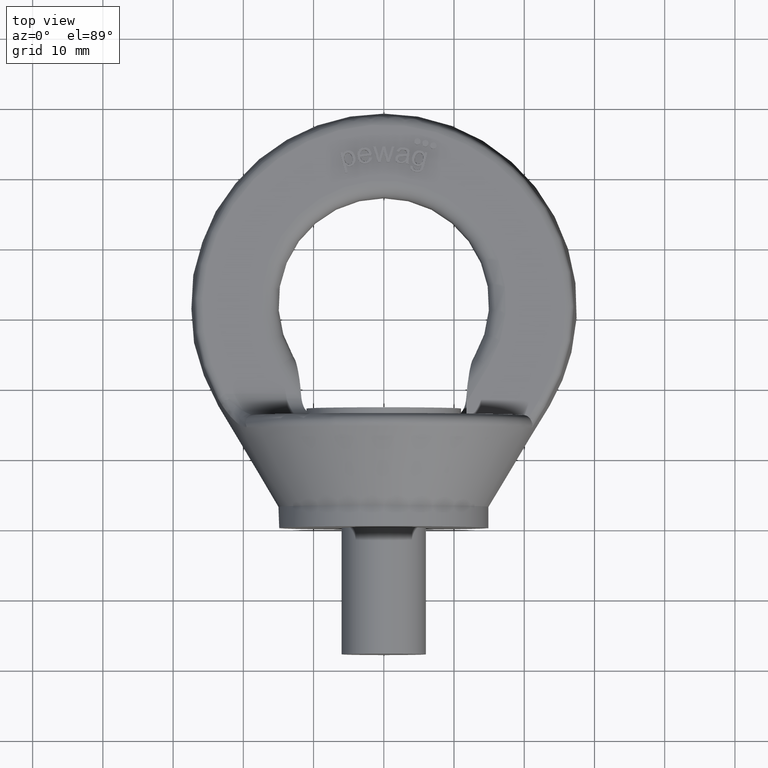
[diagram: clean part render]
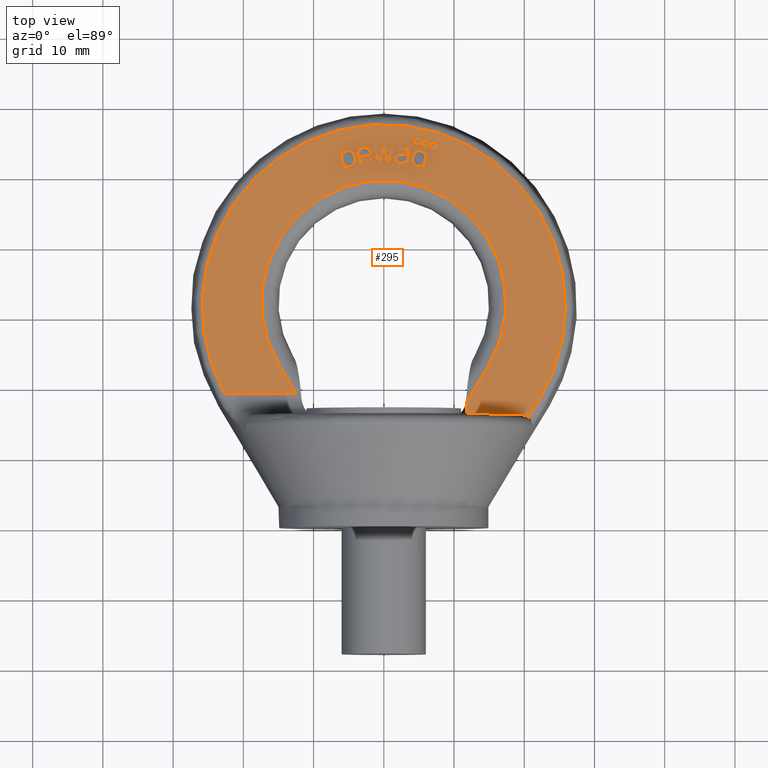
[diagram: same view with one face highlighted and labeled with its STEP entity id]
A machine part, top view. The second image highlights one B-rep face of the part: STEP entity #295.
In plain terms, the highlighted planar face has unit normal (0, -0, -1).
Its self-contained STEP definition (entity closure, byte-faithful):
#295=ADVANCED_FACE('',(#619,#620,#621,#622,#623,#624,#625,#626,#627),#477,
 .F.);
#477=PLANE('',#3199);
#570=CIRCLE('',#3194,0.45);
#571=CIRCLE('',#3195,0.45);
#572=CIRCLE('',#3196,0.45);
#573=CIRCLE('',#3197,17.4);
#574=CIRCLE('',#3198,25.8582675367086);
#619=FACE_BOUND('',#681,.T.);
#620=FACE_BOUND('',#682,.T.);
#621=FACE_BOUND('',#683,.T.);
#622=FACE_BOUND('',#684,.T.);
#623=FACE_BOUND('',#685,.T.);
#624=FACE_BOUND('',#686,.T.);
#625=FACE_BOUND('',#687,.T.);
#626=FACE_BOUND('',#688,.T.);
#627=FACE_BOUND('',#689,.T.);
#681=EDGE_LOOP('',(#1345,#1346,#1347,#1348,#1349,#1350,#1351));
#682=EDGE_LOOP('',(#1352,#1353,#1354,#1355,#1356,#1357,#1358,#1359,#1360,
#1361,#1362,#1363,#1364,#1365,#1366));
#683=EDGE_LOOP('',(#1367,#1368,#1369,#1370,#1371));
#684=EDGE_LOOP('',(#1372));
#685=EDGE_LOOP('',(#1373));
#686=EDGE_LOOP('',(#1374));
#687=EDGE_LOOP('',(#1375,#1376,#1377,#1378,#1379,#1380,#1381,#1382,#1383));
#688=EDGE_LOOP('',(#1384,#1385,#1386,#1387,#1388,#1389));
#689=EDGE_LOOP('',(#1390,#1391,#1392,#1393,#1394,#1395,#1396,#1397,#1398));
#901=LINE('',#3985,#1095);
#902=LINE('',#4017,#1096);
#903=LINE('',#4019,#1097);
#904=LINE('',#4020,#1098);
#905=LINE('',#4023,#1099);
#906=LINE('',#4025,#1100);
#907=LINE('',#4027,#1101);
#908=LINE('',#4041,#1102);
#909=LINE('',#4043,#1103);
#910=LINE('',#4059,#1104);
#911=LINE('',#4061,#1105);
#912=LINE('',#4063,#1106);
#913=LINE('',#4065,#1107);
#914=LINE('',#4067,#1108);
#915=LINE('',#4083,#1109);
#916=LINE('',#4106,#1110);
#917=LINE('',#4116,#1111);
#918=LINE('',#4118,#1112);
#919=LINE('',#4120,#1113);
#920=LINE('',#4143,#1114);
#921=LINE('',#4145,#1115);
#922=LINE('',#4146,#1116);
#923=LINE('',#4149,#1117);
#924=LINE('',#4151,#1118);
#925=LINE('',#4153,#1119);
#926=LINE('',#4155,#1120);
#927=LINE('',#4179,#1121);
#928=LINE('',#4224,#1122);
#1095=VECTOR('',#3369,1.);
#1096=VECTOR('',#3370,1.);
#1097=VECTOR('',#3371,1.);
#1098=VECTOR('',#3372,1.);
#1099=VECTOR('',#3373,1.);
#1100=VECTOR('',#3374,1.);
#1101=VECTOR('',#3375,1.);
#1102=VECTOR('',#3376,1.);
#1103=VECTOR('',#3377,1.);
#1104=VECTOR('',#3378,1.);
#1105=VECTOR('',#3379,1.);
#1106=VECTOR('',#3380,1.);
#1107=VECTOR('',#3381,1.);
#1108=VECTOR('',#3382,1.);
#1109=VECTOR('',#3383,1.);
#1110=VECTOR('',#3384,1.);
#1111=VECTOR('',#3393,1.);
#1112=VECTOR('',#3394,1.);
#1113=VECTOR('',#3395,1.);
#1114=VECTOR('',#3398,1.);
#1115=VECTOR('',#3399,1.);
#1116=VECTOR('',#3400,1.);
#1117=VECTOR('',#3401,1.);
#1118=VECTOR('',#3402,1.);
#1119=VECTOR('',#3403,1.);
#1120=VECTOR('',#3404,1.);
#1121=VECTOR('',#3405,1.);
#1122=VECTOR('',#3406,1.);
#1345=ORIENTED_EDGE('',*,*,#2512,.T.);
#1346=ORIENTED_EDGE('',*,*,#2513,.T.);
#1347=ORIENTED_EDGE('',*,*,#2514,.T.);
#1348=ORIENTED_EDGE('',*,*,#2515,.T.);
#1349=ORIENTED_EDGE('',*,*,#2516,.T.);
#1350=ORIENTED_EDGE('',*,*,#2517,.T.);
#1351=ORIENTED_EDGE('',*,*,#2518,.T.);
#1352=ORIENTED_EDGE('',*,*,#2519,.T.);
#1353=ORIENTED_EDGE('',*,*,#2520,.T.);
#1354=ORIENTED_EDGE('',*,*,#2521,.T.);
#1355=ORIENTED_EDGE('',*,*,#2522,.T.);
#1356=ORIENTED_EDGE('',*,*,#2523,.T.);
#1357=ORIENTED_EDGE('',*,*,#2524,.T.);
#1358=ORIENTED_EDGE('',*,*,#2525,.T.);
#1359=ORIENTED_EDGE('',*,*,#2526,.T.);
#1360=ORIENTED_EDGE('',*,*,#2527,.T.);
#1361=ORIENTED_EDGE('',*,*,#2528,.T.);
#1362=ORIENTED_EDGE('',*,*,#2529,.T.);
#1363=ORIENTED_EDGE('',*,*,#2530,.T.);
#1364=ORIENTED_EDGE('',*,*,#2531,.T.);
#1365=ORIENTED_EDGE('',*,*,#2532,.T.);
#1366=ORIENTED_EDGE('',*,*,#2533,.T.);
#1367=ORIENTED_EDGE('',*,*,#2534,.T.);
#1368=ORIENTED_EDGE('',*,*,#2535,.T.);
#1369=ORIENTED_EDGE('',*,*,#2536,.T.);
#1370=ORIENTED_EDGE('',*,*,#2537,.T.);
#1371=ORIENTED_EDGE('',*,*,#2538,.T.);
#1372=ORIENTED_EDGE('',*,*,#2539,.F.);
#1373=ORIENTED_EDGE('',*,*,#2540,.F.);
#1374=ORIENTED_EDGE('',*,*,#2541,.F.);
#1375=ORIENTED_EDGE('',*,*,#2542,.T.);
#1376=ORIENTED_EDGE('',*,*,#2543,.T.);
#1377=ORIENTED_EDGE('',*,*,#2544,.T.);
#1378=ORIENTED_EDGE('',*,*,#2545,.F.);
#1379=ORIENTED_EDGE('',*,*,#2546,.T.);
#1380=ORIENTED_EDGE('',*,*,#2547,.T.);
#1381=ORIENTED_EDGE('',*,*,#2548,.T.);
#1382=ORIENTED_EDGE('',*,*,#2549,.T.);
#1383=ORIENTED_EDGE('',*,*,#2550,.T.);
#1384=ORIENTED_EDGE('',*,*,#2551,.T.);
#1385=ORIENTED_EDGE('',*,*,#2552,.T.);
#1386=ORIENTED_EDGE('',*,*,#2553,.T.);
#1387=ORIENTED_EDGE('',*,*,#2554,.T.);
#1388=ORIENTED_EDGE('',*,*,#2555,.T.);
#1389=ORIENTED_EDGE('',*,*,#2556,.T.);
#1390=ORIENTED_EDGE('',*,*,#2557,.T.);
#1391=ORIENTED_EDGE('',*,*,#2558,.T.);
#1392=ORIENTED_EDGE('',*,*,#2559,.T.);
#1393=ORIENTED_EDGE('',*,*,#2560,.T.);
#1394=ORIENTED_EDGE('',*,*,#2561,.T.);
#1395=ORIENTED_EDGE('',*,*,#2562,.T.);
#1396=ORIENTED_EDGE('',*,*,#2563,.T.);
#1397=ORIENTED_EDGE('',*,*,#2564,.T.);
#1398=ORIENTED_EDGE('',*,*,#2565,.T.);
#2219=VERTEX_POINT('',#3978);
#2220=VERTEX_POINT('',#3979);
#2221=VERTEX_POINT('',#3984);
#2222=VERTEX_POINT('',#3986);
#2223=VERTEX_POINT('',#3999);
#2224=VERTEX_POINT('',#4016);
#2225=VERTEX_POINT('',#4018);
#2226=VERTEX_POINT('',#4021);
#2227=VERTEX_POINT('',#4022);
#2228=VERTEX_POINT('',#4024);
#2229=VERTEX_POINT('',#4026);
#2230=VERTEX_POINT('',#4028);
#2231=VERTEX_POINT('',#4035);
#2232=VERTEX_POINT('',#4040);
#2233=VERTEX_POINT('',#4042);
#2234=VERTEX_POINT('',#4044);
#2235=VERTEX_POINT('',#4051);
#2236=VERTEX_POINT('',#4058);
#2237=VERTEX_POINT('',#4060);
#2238=VERTEX_POINT('',#4062);
#2239=VERTEX_POINT('',#4064);
#2240=VERTEX_POINT('',#4066);
#2241=VERTEX_POINT('',#4076);
#2242=VERTEX_POINT('',#4077);
#2243=VERTEX_POINT('',#4082);
#2244=VERTEX_POINT('',#4084);
#2245=VERTEX_POINT('',#4105);
#2246=VERTEX_POINT('',#4108);
#2247=VERTEX_POINT('',#4110);
#2248=VERTEX_POINT('',#4112);
#2249=VERTEX_POINT('',#4114);
#2250=VERTEX_POINT('',#4115);
#2251=VERTEX_POINT('',#4117);
#2252=VERTEX_POINT('',#4119);
#2253=VERTEX_POINT('',#4121);
#2254=VERTEX_POINT('',#4132);
#2255=VERTEX_POINT('',#4140);
#2256=VERTEX_POINT('',#4142);
#2257=VERTEX_POINT('',#4144);
#2258=VERTEX_POINT('',#4147);
#2259=VERTEX_POINT('',#4148);
#2260=VERTEX_POINT('',#4150);
#2261=VERTEX_POINT('',#4152);
#2262=VERTEX_POINT('',#4154);
#2263=VERTEX_POINT('',#4156);
#2264=VERTEX_POINT('',#4180);
#2265=VERTEX_POINT('',#4181);
#2266=VERTEX_POINT('',#4186);
#2267=VERTEX_POINT('',#4203);
#2268=VERTEX_POINT('',#4210);
#2269=VERTEX_POINT('',#4223);
#2270=VERTEX_POINT('',#4225);
#2271=VERTEX_POINT('',#4230);
#2272=VERTEX_POINT('',#4243);
#2512=EDGE_CURVE('',#2219,#2220,#2949,.T.);
#2513=EDGE_CURVE('',#2220,#2221,#2950,.T.);
#2514=EDGE_CURVE('',#2221,#2222,#901,.T.);
#2515=EDGE_CURVE('',#2222,#2223,#2951,.T.);
#2516=EDGE_CURVE('',#2223,#2224,#2952,.T.);
#2517=EDGE_CURVE('',#2224,#2225,#902,.T.);
#2518=EDGE_CURVE('',#2225,#2219,#903,.T.);
#2519=EDGE_CURVE('',#2226,#2227,#904,.T.);
#2520=EDGE_CURVE('',#2227,#2228,#905,.T.);
#2521=EDGE_CURVE('',#2228,#2229,#906,.T.);
#2522=EDGE_CURVE('',#2229,#2230,#907,.T.);
#2523=EDGE_CURVE('',#2230,#2231,#2953,.T.);
#2524=EDGE_CURVE('',#2231,#2232,#2954,.T.);
#2525=EDGE_CURVE('',#2232,#2233,#908,.T.);
#2526=EDGE_CURVE('',#2233,#2234,#909,.T.);
#2527=EDGE_CURVE('',#2234,#2235,#2955,.T.);
#2528=EDGE_CURVE('',#2235,#2236,#2956,.T.);
#2529=EDGE_CURVE('',#2236,#2237,#910,.T.);
#2530=EDGE_CURVE('',#2237,#2238,#911,.T.);
#2531=EDGE_CURVE('',#2238,#2239,#912,.T.);
#2532=EDGE_CURVE('',#2239,#2240,#913,.T.);
#2533=EDGE_CURVE('',#2240,#2226,#914,.T.);
#2534=EDGE_CURVE('',#2241,#2242,#2957,.T.);
#2535=EDGE_CURVE('',#2242,#2243,#2958,.T.);
#2536=EDGE_CURVE('',#2243,#2244,#915,.T.);
#2537=EDGE_CURVE('',#2244,#2245,#2959,.T.);
#2538=EDGE_CURVE('',#2245,#2241,#916,.T.);
#2539=EDGE_CURVE('',#2246,#2246,#570,.T.);
#2540=EDGE_CURVE('',#2247,#2247,#571,.T.);
#2541=EDGE_CURVE('',#2248,#2248,#572,.T.);
#2542=EDGE_CURVE('',#2249,#2250,#573,.T.);
#2543=EDGE_CURVE('',#2250,#2251,#917,.T.);
#2544=EDGE_CURVE('',#2251,#2252,#918,.T.);
#2545=EDGE_CURVE('',#2253,#2252,#919,.T.);
#2546=EDGE_CURVE('',#2253,#2254,#2960,.T.);
#2547=EDGE_CURVE('',#2254,#2255,#2961,.T.);
#2548=EDGE_CURVE('',#2255,#2256,#574,.T.);
#2549=EDGE_CURVE('',#2256,#2257,#920,.T.);
#2550=EDGE_CURVE('',#2257,#2249,#921,.T.);
#2551=EDGE_CURVE('',#2258,#2259,#922,.T.);
#2552=EDGE_CURVE('',#2259,#2260,#923,.T.);
#2553=EDGE_CURVE('',#2260,#2261,#924,.T.);
#2554=EDGE_CURVE('',#2261,#2262,#925,.T.);
#2555=EDGE_CURVE('',#2262,#2263,#926,.T.);
#2556=EDGE_CURVE('',#2263,#2258,#2962,.T.);
#2557=EDGE_CURVE('',#2264,#2265,#927,.T.);
#2558=EDGE_CURVE('',#2265,#2266,#2963,.T.);
#2559=EDGE_CURVE('',#2266,#2267,#2964,.T.);
#2560=EDGE_CURVE('',#2267,#2268,#2965,.T.);
#2561=EDGE_CURVE('',#2268,#2269,#2966,.T.);
#2562=EDGE_CURVE('',#2269,#2270,#928,.T.);
#2563=EDGE_CURVE('',#2270,#2271,#2967,.T.);
#2564=EDGE_CURVE('',#2271,#2272,#2968,.T.);
#2565=EDGE_CURVE('',#2272,#2264,#2969,.T.);
#2949=B_SPLINE_CURVE_WITH_KNOTS('',3,(#3966,#3967,#3968,#3969,#3970,#3971,
#3972,#3973,#3974,#3975,#3976,#3977),.UNSPECIFIED.,.F.,.F.,(4,2,2,2,2,4),
(0.,0.305645754892086,0.470829306249209,0.636012857606332,0.802206343843955,
1.),.UNSPECIFIED.);
#2950=B_SPLINE_CURVE_WITH_KNOTS('',3,(#3980,#3981,#3982,#3983),
 .UNSPECIFIED.,.F.,.F.,(4,4),(0.,1.),.UNSPECIFIED.);
#2951=B_SPLINE_CURVE_WITH_KNOTS('',3,(#3987,#3988,#3989,#3990,#3991,#3992,
#3993,#3994,#3995,#3996,#3997,#3998),.UNSPECIFIED.,.F.,.F.,(4,2,2,2,2,4),
(0.,0.16330465130929,0.382303784248535,0.619375661168201,0.856447538087869,
1.),.UNSPECIFIED.);
#2952=B_SPLINE_CURVE_WITH_KNOTS('',3,(#4000,#4001,#4002,#4003,#4004,#4005,
#4006,#4007,#4008,#4009,#4010,#4011,#4012,#4013,#4014,#4015),
 .UNSPECIFIED.,.F.,.F.,(4,2,2,2,2,2,2,4),(0.,0.139503666745452,0.312880428291713,
0.486257189837976,0.605370995480445,0.723854105689066,0.842337215897688,
1.),.UNSPECIFIED.);
#2953=B_SPLINE_CURVE_WITH_KNOTS('',3,(#4029,#4030,#4031,#4032,#4033,#4034),
 .UNSPECIFIED.,.F.,.F.,(4,2,4),(0.,0.728909607654959,1.),.UNSPECIFIED.);
#2954=B_SPLINE_CURVE_WITH_KNOTS('',3,(#4036,#4037,#4038,#4039),
 .UNSPECIFIED.,.F.,.F.,(4,4),(0.,1.),.UNSPECIFIED.);
#2955=B_SPLINE_CURVE_WITH_KNOTS('',3,(#4045,#4046,#4047,#4048,#4049,#4050),
 .UNSPECIFIED.,.F.,.F.,(4,2,4),(0.,0.752082276025114,1.),.UNSPECIFIED.);
#2956=B_SPLINE_CURVE_WITH_KNOTS('',3,(#4052,#4053,#4054,#4055,#4056,#4057),
 .UNSPECIFIED.,.F.,.F.,(4,2,4),(0.,0.250451922487267,1.),.UNSPECIFIED.);
#2957=B_SPLINE_CURVE_WITH_KNOTS('',3,(#4068,#4069,#4070,#4071,#4072,#4073,
#4074,#4075),.UNSPECIFIED.,.F.,.F.,(4,2,2,4),(0.,0.36347796861321,0.72808767591244,
1.),.UNSPECIFIED.);
#2958=B_SPLINE_CURVE_WITH_KNOTS('',3,(#4078,#4079,#4080,#4081),
 .UNSPECIFIED.,.F.,.F.,(4,4),(0.,1.),.UNSPECIFIED.);
#2959=B_SPLINE_CURVE_WITH_KNOTS('',3,(#4085,#4086,#4087,#4088,#4089,#4090,
#4091,#4092,#4093,#4094,#4095,#4096,#4097,#4098,#4099,#4100,#4101,#4102,
#4103,#4104),.UNSPECIFIED.,.F.,.F.,(4,2,2,2,2,2,2,2,2,4),(0.,0.10292120312204,
0.206156274885326,0.336063021724233,0.465707475917735,0.599570296299742,
0.733433116681749,0.86284525505617,0.992257393430589,1.),.UNSPECIFIED.);
#2960=B_SPLINE_CURVE_WITH_KNOTS('',3,(#4122,#4123,#4124,#4125,#4126,#4127,
#4128,#4129,#4130,#4131),.UNSPECIFIED.,.F.,.F.,(4,3,3,4),(0.,0.463311425713851,
0.927293740386998,1.),.UNSPECIFIED.);
#2961=B_SPLINE_CURVE_WITH_KNOTS('',3,(#4133,#4134,#4135,#4136,#4137,#4138,
#4139),.UNSPECIFIED.,.F.,.F.,(4,3,4),(0.,0.140934782640882,1.),
 .UNSPECIFIED.);
#2962=B_SPLINE_CURVE_WITH_KNOTS('',3,(#4157,#4158,#4159,#4160,#4161,#4162,
#4163,#4164,#4165,#4166,#4167,#4168,#4169,#4170,#4171,#4172,#4173,#4174,
#4175,#4176,#4177,#4178),.UNSPECIFIED.,.F.,.F.,(4,2,2,2,2,2,2,2,2,2,4),
(0.,0.0830854503763809,0.165678296755064,0.273272220956485,0.380460889370507,
0.487248686046667,0.601946689884027,0.717055250849187,0.831909514623418,
0.915821305508702,1.),.UNSPECIFIED.);
#2963=B_SPLINE_CURVE_WITH_KNOTS('',3,(#4182,#4183,#4184,#4185),
 .UNSPECIFIED.,.F.,.F.,(4,4),(0.,1.),.UNSPECIFIED.);
#2964=B_SPLINE_CURVE_WITH_KNOTS('',3,(#4187,#4188,#4189,#4190,#4191,#4192,
#4193,#4194,#4195,#4196,#4197,#4198,#4199,#4200,#4201,#4202),
 .UNSPECIFIED.,.F.,.F.,(4,2,2,2,2,2,2,4),(0.,0.121639465164562,0.243930904991188,
0.445161792748228,0.646392680505269,0.76356509616127,0.881519242448368,
1.),.UNSPECIFIED.);
#2965=B_SPLINE_CURVE_WITH_KNOTS('',3,(#4204,#4205,#4206,#4207,#4208,#4209),
 .UNSPECIFIED.,.F.,.F.,(4,2,4),(0.,0.3293446934494,1.),.UNSPECIFIED.);
#2966=B_SPLINE_CURVE_WITH_KNOTS('',3,(#4211,#4212,#4213,#4214,#4215,#4216,
#4217,#4218,#4219,#4220,#4221,#4222),.UNSPECIFIED.,.F.,.F.,(4,2,2,2,2,4),
(0.,0.0173977322142899,0.217983350684955,0.490675035316423,0.745337517658205,
1.),.UNSPECIFIED.);
#2967=B_SPLINE_CURVE_WITH_KNOTS('',3,(#4226,#4227,#4228,#4229),
 .UNSPECIFIED.,.F.,.F.,(4,4),(0.,1.),.UNSPECIFIED.);
#2968=B_SPLINE_CURVE_WITH_KNOTS('',3,(#4231,#4232,#4233,#4234,#4235,#4236,
#4237,#4238,#4239,#4240,#4241,#4242),.UNSPECIFIED.,.F.,.F.,(4,2,2,2,2,4),
(0.,0.201730292707491,0.402155128097313,0.601755169925863,0.80019954507805,
1.),.UNSPECIFIED.);
#2969=B_SPLINE_CURVE_WITH_KNOTS('',3,(#4244,#4245,#4246,#4247,#4248,#4249,
#4250,#4251,#4252,#4253),.UNSPECIFIED.,.F.,.F.,(4,2,2,2,4),(0.,0.161403604805118,
0.32305979741118,0.661780038481079,1.),.UNSPECIFIED.);
#3194=AXIS2_PLACEMENT_3D('',#4107,#3385,#3386);
#3195=AXIS2_PLACEMENT_3D('',#4109,#3387,#3388);
#3196=AXIS2_PLACEMENT_3D('',#4111,#3389,#3390);
#3197=AXIS2_PLACEMENT_3D('',#4113,#3391,#3392);
#3198=AXIS2_PLACEMENT_3D('',#4141,#3396,#3397);
#3199=AXIS2_PLACEMENT_3D('',#4254,#3407,#3408);
#3369=DIRECTION('',(0.926036898244061,-0.377432991523685,4.32376707266986E-17));
#3370=DIRECTION('',(0.240441711768687,0.970663578816958,-1.11196512095718E-16));
#3371=DIRECTION('',(0.970663578816969,-0.240441711768639,2.75443318307901E-17));
#3372=DIRECTION('',(-0.258675883018076,-0.965964175083537,1.10658161512169E-16));
#3373=DIRECTION('',(-0.999999995678886,9.29635860053068E-5,-1.06496491073657E-20));
#3374=DIRECTION('',(-0.297319028478967,0.954778191678216,-1.09376726454568E-16));
#3375=DIRECTION('',(0.999999995678886,-9.29635860091688E-5,1.06496491078081E-20));
#3376=DIRECTION('',(0.266687759387679,0.963782983348834,-1.10408290271088E-16));
#3377=DIRECTION('',(0.999999995678886,-9.29635860511763E-5,1.06496491126204E-20));
#3378=DIRECTION('',(0.999999995678886,-9.29635860255876E-5,1.0649649109689E-20));
#3379=DIRECTION('',(-0.303109223404765,-0.952955822001713,1.09167960867604E-16));
#3380=DIRECTION('',(-0.999999995678886,9.29635860032808E-5,-1.06496491071336E-20));
#3381=DIRECTION('',(-0.260553429481471,0.965459429694197,-1.10600339288263E-16));
#3382=DIRECTION('',(-0.226101851815538,0.974103666251998,-1.11590598916763E-16));
#3383=DIRECTION('',(0.99995564898741,0.0094180708305311,-1.07890792431078E-18));
#3384=DIRECTION('',(-0.991600377783164,-0.129339440157618,1.48167654950737E-17));
#3385=DIRECTION('',(0.,1.14557210677714E-16,1.));
#3386=DIRECTION('',(0.,0.999999999999997,0.));
#3387=DIRECTION('',(0.,1.14557210677714E-16,1.));
#3388=DIRECTION('',(0.,0.999999999999997,0.));
#3389=DIRECTION('',(0.,1.14557210677714E-16,1.));
#3390=DIRECTION('',(0.,0.999999999999997,0.));
#3391=DIRECTION('',(0.,-1.14557210677714E-16,-1.));
#3392=DIRECTION('',(0.,1.,-9.969675149292E-17));
#3393=DIRECTION('',(-0.51318793037975,-0.858276265611807,9.83217349793731E-17));
#3394=DIRECTION('',(0.,-1.,0.));
#3395=DIRECTION('',(-1.,0.,0.));
#3396=DIRECTION('',(0.,1.14557210677714E-16,1.));
#3397=DIRECTION('',(0.,1.,-1.00628752884209E-16));
#3398=DIRECTION('',(1.,4.38613491528481E-16,-5.02463381551158E-32));
#3399=DIRECTION('',(-0.513187930379751,0.858276265611807,-9.83217349793731E-17));
#3400=DIRECTION('',(0.240261234879321,-0.970708266686889,1.11201631413448E-16));
#3401=DIRECTION('',(-0.970708266686887,-0.240261234879326,2.75236569017586E-17));
#3402=DIRECTION('',(-0.24026123487932,0.970708266686889,-1.11201631413448E-16));
#3403=DIRECTION('',(0.970708266686893,0.240261234879303,-2.7523656901756E-17));
#3404=DIRECTION('',(0.240261234879329,-0.970708266686887,1.11201631413448E-16));
#3405=DIRECTION('',(-0.991576312927648,0.129523803375332,-1.48378856310467E-17));
#3406=DIRECTION('',(-0.965560779386236,0.260177595713091,-2.98052196457256E-17));
#3407=DIRECTION('',(0.,-1.14557210677714E-16,-1.));
#3408=DIRECTION('',(0.,1.,-1.14491749414469E-16));
#3966=CARTESIAN_POINT('',(6.20575754336817,53.3063757401385,6.));
#3967=CARTESIAN_POINT('',(6.05518161335801,52.6985004674489,6.));
#3968=CARTESIAN_POINT('',(5.90460568334785,52.0906251947592,6.));
#3969=CARTESIAN_POINT('',(5.67265232057485,51.1542290945498,6.));
#3970=CARTESIAN_POINT('',(5.5809698240465,50.9302553745607,6.));
#3971=CARTESIAN_POINT('',(5.37662564480681,50.6899122592701,6.));
#3972=CARTESIAN_POINT('',(5.2420504243621,50.6078121137664,6.));
#3973=CARTESIAN_POINT('',(4.90781318724153,50.5224743446232,6.));
#3974=CARTESIAN_POINT('',(4.7161927536727,50.5277574319655,6.));
#3975=CARTESIAN_POINT('',(4.24472578209141,50.6445438532996,6.));
#3976=CARTESIAN_POINT('',(4.05181997350079,50.7524180364342,6.));
#3977=CARTESIAN_POINT('',(3.92220745020137,50.904703685001,6.));
#3978=CARTESIAN_POINT('',(6.20575754336817,53.3063757401385,6.));
#3979=CARTESIAN_POINT('',(3.92220745020137,50.904703685001,6.));
#3980=CARTESIAN_POINT('',(3.92220745020137,50.904703685001,6.));
#3981=CARTESIAN_POINT('',(3.79259492690194,51.0569893335678,6.));
#3982=CARTESIAN_POINT('',(3.75905359406856,51.2463577334012,6.));
#3983=CARTESIAN_POINT('',(3.82064093689038,51.4722516988339,6.));
#3984=CARTESIAN_POINT('',(3.82064093689038,51.4722516988339,6.));
#3985=CARTESIAN_POINT('',(41.5829666251604,36.0811289709585,6.));
#3986=CARTESIAN_POINT('',(4.16188763482528,51.3331667851621,6.));
#3987=CARTESIAN_POINT('',(4.16188763482528,51.3331667851621,6.));
#3988=CARTESIAN_POINT('',(4.1497171360946,51.2223272473401,6.));
#3989=CARTESIAN_POINT('',(4.17127277304765,51.1339689886218,6.));
#3990=CARTESIAN_POINT('',(4.30068997402487,50.9797479153108,6.));
#3991=CARTESIAN_POINT('',(4.41576405205717,50.9160661145281,6.));
#3992=CARTESIAN_POINT('',(4.74093982506099,50.8355172805211,6.));
#3993=CARTESIAN_POINT('',(4.87867463331529,50.8361879908635,6.));
#3994=CARTESIAN_POINT('',(5.0949533406775,50.923350430372,6.));
#3995=CARTESIAN_POINT('',(5.18017431618491,51.0010722981359,6.));
#3996=CARTESIAN_POINT('',(5.27868933679549,51.1797755599088,6.));
#3997=CARTESIAN_POINT('',(5.32549224742333,51.3311489177058,6.));
#3998=CARTESIAN_POINT('',(5.38173395548938,51.5646922803139,6.));
#3999=CARTESIAN_POINT('',(5.38173395548938,51.5646922803139,6.));
#4000=CARTESIAN_POINT('',(5.38173395548938,51.5646922803139,6.));
#4001=CARTESIAN_POINT('',(5.1767937308231,51.4193753730725,6.));
#4002=CARTESIAN_POINT('',(4.9562624121782,51.3767523497323,6.));
#4003=CARTESIAN_POINT('',(4.42415660180832,51.5085595326528,6.));
#4004=CARTESIAN_POINT('',(4.22107909102038,51.6695552338382,6.));
#4005=CARTESIAN_POINT('',(4.00188275567911,52.1681999844469,6.));
#4006=CARTESIAN_POINT('',(3.98296469165895,52.439336781128,6.));
#4007=CARTESIAN_POINT('',(4.10530763479221,52.9332354401884,6.));
#4008=CARTESIAN_POINT('',(4.18839672572244,53.1095265753095,6.));
#4009=CARTESIAN_POINT('',(4.42085924575848,53.4131047639506,6.));
#4010=CARTESIAN_POINT('',(4.56082942679884,53.5185468657608,6.));
#4011=CARTESIAN_POINT('',(4.88856330001201,53.6334467307898,6.));
#4012=CARTESIAN_POINT('',(5.06542948324847,53.6394467022555,6.));
#4013=CARTESIAN_POINT('',(5.50885099189005,53.5296073831551,6.));
#4014=CARTESIAN_POINT('',(5.6923855412168,53.3774059149407,6.));
#4015=CARTESIAN_POINT('',(5.80686094408679,53.1347819534282,6.));
#4016=CARTESIAN_POINT('',(5.80686094408679,53.1347819534282,6.));
#4017=CARTESIAN_POINT('',(12.3535770690589,79.5638855254303,6.));
#4018=CARTESIAN_POINT('',(5.86996997357634,53.3895532074231,6.));
#4019=CARTESIAN_POINT('',(48.5163929045193,42.8256676819946,6.));
#4020=CARTESIAN_POINT('',(7.50132722587871,81.7196861322211,6.));
#4021=CARTESIAN_POINT('',(-0.00969874891857249,53.6715282400953,6.));
#4022=CARTESIAN_POINT('',(-0.457306471073102,52.0000425992719,6.));
#4023=CARTESIAN_POINT('',(54.9984191437302,51.994887236132,6.));
#4024=CARTESIAN_POINT('',(-0.848534425392187,52.0000789692257,6.));
#4025=CARTESIAN_POINT('',(-0.737432804766271,51.6432992334099,6.));
#4026=CARTESIAN_POINT('',(-1.52536757645237,54.1735877935451,6.));
#4027=CARTESIAN_POINT('',(54.9986211950545,54.1683331208306,6.));
#4028=CARTESIAN_POINT('',(-1.13804409273526,54.1735517865649,6.));
#4029=CARTESIAN_POINT('',(-1.13804409273526,54.1735517865649,6.));
#4030=CARTESIAN_POINT('',(-1.02068856010013,53.7552753339072,6.));
#4031=CARTESIAN_POINT('',(-0.903333027465002,53.3369988812496,6.));
#4032=CARTESIAN_POINT('',(-0.742331537839029,52.7631603033725,6.));
#4033=CARTESIAN_POINT('',(-0.69854627217898,52.6076372975369,6.));
#4034=CARTESIAN_POINT('',(-0.654830660853536,52.4520947320095,6.));
#4035=CARTESIAN_POINT('',(-0.654830660853536,52.4520947320095,6.));
#4036=CARTESIAN_POINT('',(-0.654830660853536,52.4520947320095,6.));
#4037=CARTESIAN_POINT('',(-0.649362261636555,52.4751180149979,6.));
#4038=CARTESIAN_POINT('',(-0.611084537304792,52.6247691003413,6.));
#4039=CARTESIAN_POINT('',(-0.54077845332445,52.9002806009293,6.));
#4040=CARTESIAN_POINT('',(-0.54077845332445,52.9002806009293,6.));
#4041=CARTESIAN_POINT('',(7.54750962212469,82.130547597208,6.));
#4042=CARTESIAN_POINT('',(-0.188476842332043,54.1734635113878,6.));
#4043=CARTESIAN_POINT('',(54.9986211950538,54.1683331208283,6.));
#4044=CARTESIAN_POINT('',(0.196503959023868,54.1734277221918,6.));
#4045=CARTESIAN_POINT('',(0.196503959023868,54.1734277221918,6.));
#4046=CARTESIAN_POINT('',(0.306831254319939,53.7531053636731,6.));
#4047=CARTESIAN_POINT('',(0.417158549616009,53.3327830051544,6.));
#4048=CARTESIAN_POINT('',(0.56385432853952,52.773904845254,6.));
#4049=CARTESIAN_POINT('',(0.601384756255444,52.6356566407148,6.));
#4050=CARTESIAN_POINT('',(0.638334211927127,52.4972546377543,6.));
#4051=CARTESIAN_POINT('',(0.638334211927127,52.4972546377543,6.));
#4052=CARTESIAN_POINT('',(0.638334211927127,52.4972546377543,6.));
#4053=CARTESIAN_POINT('',(0.680515503147326,52.6371842038601,6.));
#4054=CARTESIAN_POINT('',(0.722696794367526,52.7771137699659,6.));
#4055=CARTESIAN_POINT('',(0.891117506819209,53.3358220630235,6.));
#4056=CARTESIAN_POINT('',(1.01744504657317,53.7545742218898,6.));
#4057=CARTESIAN_POINT('',(1.1437285270659,54.1733396647988,6.));
#4058=CARTESIAN_POINT('',(1.1437285270659,54.1733396647988,6.));
#4059=CARTESIAN_POINT('',(54.9986211950542,54.1683331208297,6.));
#4060=CARTESIAN_POINT('',(1.50840608129148,54.1733057630654,6.));
#4061=CARTESIAN_POINT('',(10.7056432107963,83.0888252924331,6.));
#4062=CARTESIAN_POINT('',(0.817112733415437,51.9999241246921,6.));
#4063=CARTESIAN_POINT('',(54.9984191437303,51.9948872361321,6.));
#4064=CARTESIAN_POINT('',(0.427446567337142,51.9999603494564,6.));
#4065=CARTESIAN_POINT('',(-0.144151021319483,54.1179684795249,6.));
#4066=CARTESIAN_POINT('',(0.0761652156463484,53.3016046768427,6.));
#4067=CARTESIAN_POINT('',(-0.573534766695645,56.100675669324,6.));
#4068=CARTESIAN_POINT('',(-3.35202607716546,52.7329249638483,6.));
#4069=CARTESIAN_POINT('',(-3.30721731521262,52.4980678234778,6.));
#4070=CARTESIAN_POINT('',(-3.21545129474865,52.3258346853053,6.));
#4071=CARTESIAN_POINT('',(-2.93757280277485,52.1062751302244,6.));
#4072=CARTESIAN_POINT('',(-2.77644761183763,52.0634503873468,6.));
#4073=CARTESIAN_POINT('',(-2.45742162968367,52.1050625557687,6.));
#4074=CARTESIAN_POINT('',(-2.34583748267765,52.1552192305778,6.));
#4075=CARTESIAN_POINT('',(-2.25817779759022,52.2378575086575,6.));
#4076=CARTESIAN_POINT('',(-3.35202607716546,52.7329249638483,6.));
#4077=CARTESIAN_POINT('',(-2.25817779759022,52.2378575086575,6.));
#4078=CARTESIAN_POINT('',(-2.25817779759022,52.2378575086575,6.));
#4079=CARTESIAN_POINT('',(-2.17139171021996,52.3211557996652,6.));
#4080=CARTESIAN_POINT('',(-2.10932418724049,52.4430238006375,6.));
#4081=CARTESIAN_POINT('',(-2.07294808917799,52.6048825378392,6.));
#4082=CARTESIAN_POINT('',(-2.07294808917799,52.6048825378392,6.));
#4083=CARTESIAN_POINT('',(55.1493411554615,53.1438300138966,6.));
#4084=CARTESIAN_POINT('',(-1.68282294338977,52.6085569270579,6.));
#4085=CARTESIAN_POINT('',(-1.68282294338977,52.6085569270579,6.));
#4086=CARTESIAN_POINT('',(-1.71520918651607,52.3798840271064,6.));
#4087=CARTESIAN_POINT('',(-1.80515361616618,52.1940109670633,6.));
#4088=CARTESIAN_POINT('',(-2.10060867269326,51.907428210507,6.));
#4089=CARTESIAN_POINT('',(-2.30206258389828,51.8196123490717,6.));
#4090=CARTESIAN_POINT('',(-2.87739342064681,51.74456904534,6.));
#4091=CARTESIAN_POINT('',(-3.14398164726295,51.8080896050236,6.));
#4092=CARTESIAN_POINT('',(-3.57069974563824,52.1482984325685,6.));
#4093=CARTESIAN_POINT('',(-3.70016305473674,52.4073419331851,6.));
#4094=CARTESIAN_POINT('',(-3.79317230679176,53.1204114297183,6.));
#4095=CARTESIAN_POINT('',(-3.73465635242915,53.4144094145965,6.));
#4096=CARTESIAN_POINT('',(-3.40744448498657,53.8641926300338,6.));
#4097=CARTESIAN_POINT('',(-3.17353434008079,53.9968655208889,6.));
#4098=CARTESIAN_POINT('',(-2.5780707957206,54.0745348352492,6.));
#4099=CARTESIAN_POINT('',(-2.32522207183296,54.0076742415339,6.));
#4100=CARTESIAN_POINT('',(-1.9023217064693,53.6634715559914,6.));
#4101=CARTESIAN_POINT('',(-1.77346838062591,53.4001047771434,6.));
#4102=CARTESIAN_POINT('',(-1.72423402735026,53.0226421621162,6.));
#4103=CARTESIAN_POINT('',(-1.72074006147039,52.9898175882272,6.));
#4104=CARTESIAN_POINT('',(-1.71663075117233,52.946237827215,6.));
#4105=CARTESIAN_POINT('',(-1.71663075117233,52.946237827215,6.));
#4106=CARTESIAN_POINT('',(56.1101487875991,60.4888764336901,6.));
#4107=CARTESIAN_POINT('',(4.78698557238326,54.9051253899601,6.));
#4108=CARTESIAN_POINT('',(4.78698557238326,55.3551253899601,6.));
#4109=CARTESIAN_POINT('',(5.92590016139337,54.6372195129437,6.));
#4110=CARTESIAN_POINT('',(5.92590016139337,55.0872195129437,6.));
#4111=CARTESIAN_POINT('',(7.05,54.3127205871449,6.));
#4112=CARTESIAN_POINT('',(7.05,54.7627205871449,6.));
#4113=CARTESIAN_POINT('',(0.,32.,6.));
#4114=CARTESIAN_POINT('',(-14.9340070216455,23.0705300113923,6.00000000000001));
#4115=CARTESIAN_POINT('',(14.9340070216454,23.0705300113923,6.00000000000001));
#4116=CARTESIAN_POINT('',(13.8193289800826,21.2062973390377,6.00000000000001));
#4117=CARTESIAN_POINT('',(11.7594659426143,17.7612990239723,6.00000000000001));
#4118=CARTESIAN_POINT('',(11.7594659426143,8.75,6.00000000000001));
#4119=CARTESIAN_POINT('',(11.7594659426143,16.,6.00000000000001));
#4120=CARTESIAN_POINT('',(55.,16.,6.00000000000001));
#4121=CARTESIAN_POINT('',(19.7668519574502,16.,6.00000000000001));
#4122=CARTESIAN_POINT('',(19.7668519574502,16.,6.00000000000001));
#4123=CARTESIAN_POINT('',(19.911611076316,16.,6.00000000000001));
#4124=CARTESIAN_POINT('',(20.0583840361328,15.975390770447,6.00000000000001));
#4125=CARTESIAN_POINT('',(20.1950751293502,15.9277384092272,6.00000000000001));
#4126=CARTESIAN_POINT('',(20.331877821378,15.8800471431547,6.00000000000001));
#4127=CARTESIAN_POINT('',(20.4624437493877,15.8078313910596,6.00000000000001));
#4128=CARTESIAN_POINT('',(20.5749526406264,15.7165560778697,6.00000000000001));
#4129=CARTESIAN_POINT('',(20.5928467314199,15.7020391030472,6.00000000000001));
#4130=CARTESIAN_POINT('',(20.6103418281092,15.6870158403178,6.00000000000001));
#4131=CARTESIAN_POINT('',(20.6273937828709,15.671518360454,6.00000000000001));
#4132=CARTESIAN_POINT('',(20.6273937828709,15.671518360454,6.00000000000001));
#4133=CARTESIAN_POINT('',(20.6273937828709,15.671518360454,6.00000000000001));
#4134=CARTESIAN_POINT('',(20.6946079317903,15.7810047885205,6.00000000000001));
#4135=CARTESIAN_POINT('',(20.7618098257881,15.890498740823,6.00000000000001));
#4136=CARTESIAN_POINT('',(20.8289998100444,16.,6.00000000000001));
#4137=CARTESIAN_POINT('',(21.2385549699976,16.6674626614921,6.00000000000001));
#4138=CARTESIAN_POINT('',(21.6476690058294,17.3351961380475,6.00000000000001));
#4139=CARTESIAN_POINT('',(22.0564104211898,18.0031574310126,6.00000000000001));
#4140=CARTESIAN_POINT('',(22.0564104211898,18.0031574310126,6.00000000000001));
#4141=CARTESIAN_POINT('',(0.,31.5,6.));
#4142=CARTESIAN_POINT('',(-22.6362541070734,19.,6.00000000000001));
#4143=CARTESIAN_POINT('',(55.,19.,6.00000000000001));
#4144=CARTESIAN_POINT('',(-12.5001206894794,19.,6.00000000000001));
#4145=CARTESIAN_POINT('',(-14.9340070216455,23.0705300113923,6.00000000000001));
#4146=CARTESIAN_POINT('',(-5.96868844841712,53.9095625551994,6.));
#4147=CARTESIAN_POINT('',(-5.37356803578884,51.505145111401,6.));
#4148=CARTESIAN_POINT('',(-5.11947748961563,50.4785633834697,6.));
#4149=CARTESIAN_POINT('',(55.8492109588014,65.5690008282706,6.));
#4150=CARTESIAN_POINT('',(-5.48332727266478,50.3885064619558,6.));
#4151=CARTESIAN_POINT('',(-6.3325382314663,53.8195056336855,6.));
#4152=CARTESIAN_POINT('',(-6.20558610384076,53.3065910978825,6.));
#4153=CARTESIAN_POINT('',(55.1269521276258,68.4870854641959,6.));
#4154=CARTESIAN_POINT('',(-5.87433119718975,53.3885804201775,6.));
#4155=CARTESIAN_POINT('',(-6.00128332481516,53.9014949559799,6.));
#4156=CARTESIAN_POINT('',(-5.80647537644102,53.1144279703381,6.));
#4157=CARTESIAN_POINT('',(-5.80647537644102,53.1144279703381,6.));
#4158=CARTESIAN_POINT('',(-5.75495155484601,53.2410297303356,6.));
#4159=CARTESIAN_POINT('',(-5.68617737849099,53.3434388891466,6.));
#4160=CARTESIAN_POINT('',(-5.51614989227521,53.4990341426942,6.));
#4161=CARTESIAN_POINT('',(-5.40327322657238,53.5557721466986,6.));
#4162=CARTESIAN_POINT('',(-5.08035654411625,53.6356976645422,6.));
#4163=CARTESIAN_POINT('',(-4.90652356101996,53.6289143346052,6.));
#4164=CARTESIAN_POINT('',(-4.58094141169125,53.5137955080985,6.));
#4165=CARTESIAN_POINT('',(-4.44250948039674,53.4085408942253,6.));
#4166=CARTESIAN_POINT('',(-4.21671123678243,53.1061589969592,6.));
#4167=CARTESIAN_POINT('',(-4.13417431668668,52.9298432833883,6.));
#4168=CARTESIAN_POINT('',(-4.03091545902558,52.5126547727631,6.));
#4169=CARTESIAN_POINT('',(-4.02220651555314,52.308458961135,6.));
#4170=CARTESIAN_POINT('',(-4.09481591643152,51.9245679397076,6.));
#4171=CARTESIAN_POINT('',(-4.1768993389815,51.7633844212303,6.));
#4172=CARTESIAN_POINT('',(-4.43106542570804,51.5046186971086,6.));
#4173=CARTESIAN_POINT('',(-4.5777668867875,51.4198641346648,6.));
#4174=CARTESIAN_POINT('',(-4.86505661132007,51.3487566903861,6.));
#4175=CARTESIAN_POINT('',(-4.98048083402139,51.3470689163627,6.));
#4176=CARTESIAN_POINT('',(-5.1980718838063,51.3993240197686,6.));
#4177=CARTESIAN_POINT('',(-5.29241811034099,51.4437969487173,6.));
#4178=CARTESIAN_POINT('',(-5.37356803578884,51.505145111401,6.));
#4179=CARTESIAN_POINT('',(51.9157619979327,45.3884531909628,6.));
#4180=CARTESIAN_POINT('',(3.58663375078712,51.7014040176141,6.));
#4181=CARTESIAN_POINT('',(3.19870137665287,51.7520773504632,6.));
#4182=CARTESIAN_POINT('',(3.19870137665287,51.7520773504632,6.));
#4183=CARTESIAN_POINT('',(3.16982659658717,51.8324730612366,6.));
#4184=CARTESIAN_POINT('',(3.15667878401668,51.924746080848,6.));
#4185=CARTESIAN_POINT('',(3.15905913034069,52.0273744195614,6.));
#4186=CARTESIAN_POINT('',(3.15905913034069,52.0273744195614,6.));
#4187=CARTESIAN_POINT('',(3.15905913034069,52.0273744195614,6.));
#4188=CARTESIAN_POINT('',(3.00622081233112,51.9304678935984,6.));
#4189=CARTESIAN_POINT('',(2.86317649634986,51.8663371311861,6.));
#4190=CARTESIAN_POINT('',(2.59616100225823,51.804985142575,6.));
#4191=CARTESIAN_POINT('',(2.45673919119492,51.7994608370121,6.));
#4192=CARTESIAN_POINT('',(2.06958113317671,51.8500330254843,6.));
#4193=CARTESIAN_POINT('',(1.89207430827172,51.9320421415375,6.));
#4194=CARTESIAN_POINT('',(1.66367163282645,52.1971668032911,6.));
#4195=CARTESIAN_POINT('',(1.61791351335016,52.3532959353351,6.));
#4196=CARTESIAN_POINT('',(1.65519012598695,52.6386690108131,6.));
#4197=CARTESIAN_POINT('',(1.69259258784644,52.7320787389794,6.));
#4198=CARTESIAN_POINT('',(1.81322165716203,52.8933776515402,6.));
#4199=CARTESIAN_POINT('',(1.88633343651515,52.9552189168073,6.));
#4200=CARTESIAN_POINT('',(2.05839495010293,53.0397911232916,6.));
#4201=CARTESIAN_POINT('',(2.15232649890045,53.0683038803388,6.));
#4202=CARTESIAN_POINT('',(2.25501751656624,53.0827532153358,6.));
#4203=CARTESIAN_POINT('',(2.25501751656624,53.0827532153358,6.));
#4204=CARTESIAN_POINT('',(2.25501751656624,53.0827532153358,6.));
#4205=CARTESIAN_POINT('',(2.33106265509882,53.0921693712247,6.));
#4206=CARTESIAN_POINT('',(2.44340124678475,53.0960707465292,6.));
#4207=CARTESIAN_POINT('',(2.89704863788281,53.0908648036648,6.));
#4208=CARTESIAN_POINT('',(3.12396218816942,53.1031465128509,6.));
#4209=CARTESIAN_POINT('',(3.27202391262743,53.1333407634184,6.));
#4210=CARTESIAN_POINT('',(3.27202391262743,53.1333407634184,6.));
#4211=CARTESIAN_POINT('',(3.27202391262743,53.1333407634184,6.));
#4212=CARTESIAN_POINT('',(3.28013322868358,53.1833641359486,6.));
#4213=CARTESIAN_POINT('',(3.28508252541494,53.2152247760252,6.));
#4214=CARTESIAN_POINT('',(3.30625564139264,53.3773166828967,6.));
#4215=CARTESIAN_POINT('',(3.2843548935053,53.4869866160121,6.));
#4216=CARTESIAN_POINT('',(3.13868992424948,53.6521089641117,6.));
#4217=CARTESIAN_POINT('',(3.00255586835919,53.7110994029469,6.));
#4218=CARTESIAN_POINT('',(2.64017592605414,53.7584349713568,6.));
#4219=CARTESIAN_POINT('',(2.50776268307787,53.7455461380799,6.));
#4220=CARTESIAN_POINT('',(2.32480452255636,53.6471561343651,6.));
#4221=CARTESIAN_POINT('',(2.24971694733842,53.5486072586319,6.));
#4222=CARTESIAN_POINT('',(2.1894722449312,53.4009067977768,6.));
#4223=CARTESIAN_POINT('',(2.1894722449312,53.4009067977768,6.));
#4224=CARTESIAN_POINT('',(47.5063678205484,41.1899293142672,6.));
#4225=CARTESIAN_POINT('',(1.83267986173346,53.497047182112,6.));
#4226=CARTESIAN_POINT('',(1.83267986173346,53.497047182112,6.));
#4227=CARTESIAN_POINT('',(1.88595571909635,53.6456579423596,6.));
#4228=CARTESIAN_POINT('',(1.956261343878,53.76185900458,6.));
#4229=CARTESIAN_POINT('',(2.04437105219443,53.8455492243962,6.));
#4230=CARTESIAN_POINT('',(2.04437105219443,53.8455492243962,6.));
#4231=CARTESIAN_POINT('',(2.04437105219443,53.8455492243962,6.));
#4232=CARTESIAN_POINT('',(2.1318058486952,53.9301015834574,6.));
#4233=CARTESIAN_POINT('',(2.25120214570703,53.9880335943857,6.));
#4234=CARTESIAN_POINT('',(2.55004918150765,54.0523746263478,6.));
#4235=CARTESIAN_POINT('',(2.72000327563322,54.0560514211964,6.));
#4236=CARTESIAN_POINT('',(3.09554659191089,54.0069963983784,6.));
#4237=CARTESIAN_POINT('',(3.24442982594345,53.965103249327,6.));
#4238=CARTESIAN_POINT('',(3.46784119111,53.8479421048998,6.));
#4239=CARTESIAN_POINT('',(3.54660690241505,53.7824454267029,6.));
#4240=CARTESIAN_POINT('',(3.63977951711304,53.6366955088806,6.));
#4241=CARTESIAN_POINT('',(3.66734298829154,53.5491861484381,6.));
#4242=CARTESIAN_POINT('',(3.67590247189241,53.4459027833153,6.));
#4243=CARTESIAN_POINT('',(3.67590247189241,53.4459027833153,6.));
#4244=CARTESIAN_POINT('',(3.67590247189241,53.4459027833153,6.));
#4245=CARTESIAN_POINT('',(3.68014037711908,53.381882894113,6.));
#4246=CARTESIAN_POINT('',(3.67172247389374,53.2692074935101,6.));
#4247=CARTESIAN_POINT('',(3.62934310717156,52.9447700148111,6.));
#4248=CARTESIAN_POINT('',(3.60813685642707,52.7824244429836,6.));
#4249=CARTESIAN_POINT('',(3.54249688341953,52.2799141651863,6.));
#4250=CARTESIAN_POINT('',(3.52220803187702,52.0643021686574,6.));
#4251=CARTESIAN_POINT('',(3.53126320181643,51.8805950811579,6.));
#4252=CARTESIAN_POINT('',(3.55091044826434,51.7896601259684,6.));
#4253=CARTESIAN_POINT('',(3.58663375078712,51.7014040176141,6.));
#4254=CARTESIAN_POINT('',(55.,69.,6.));